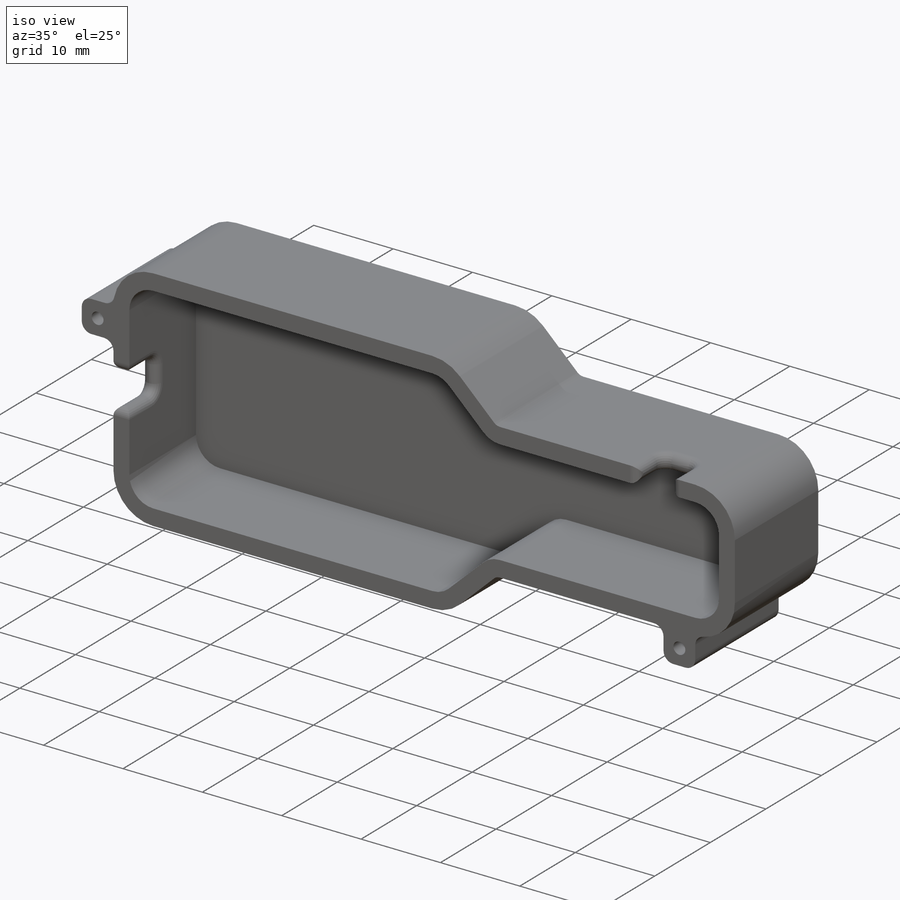
[diagram: iso view]
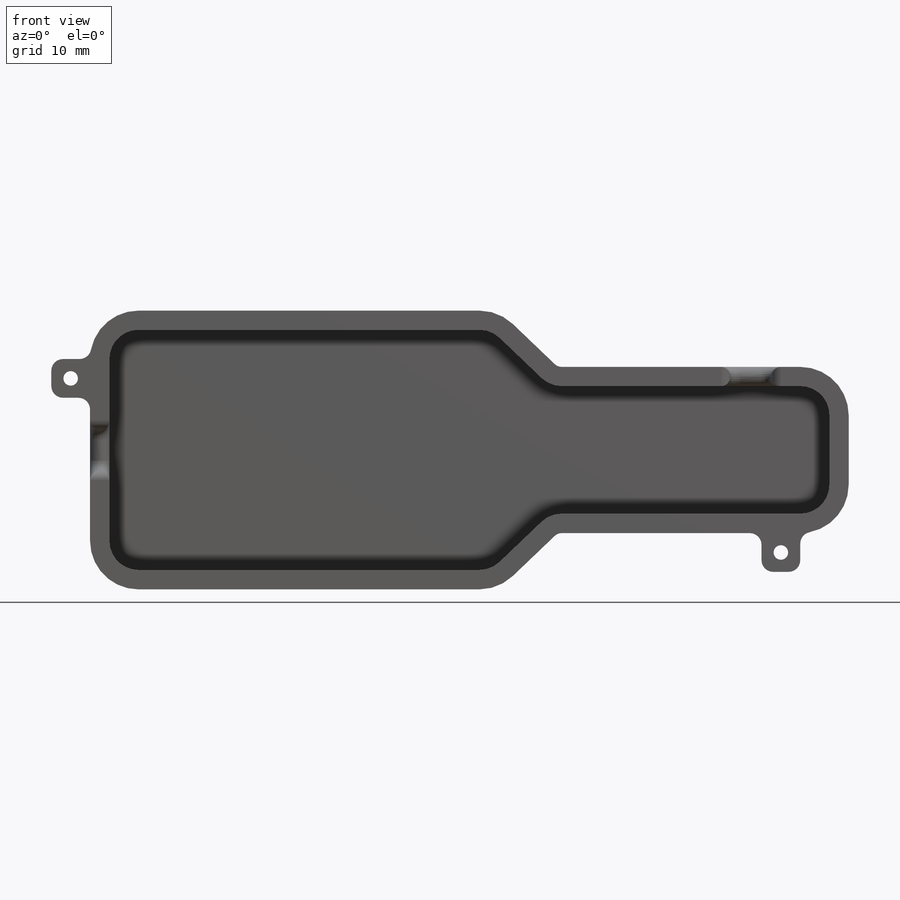
[diagram: front view]
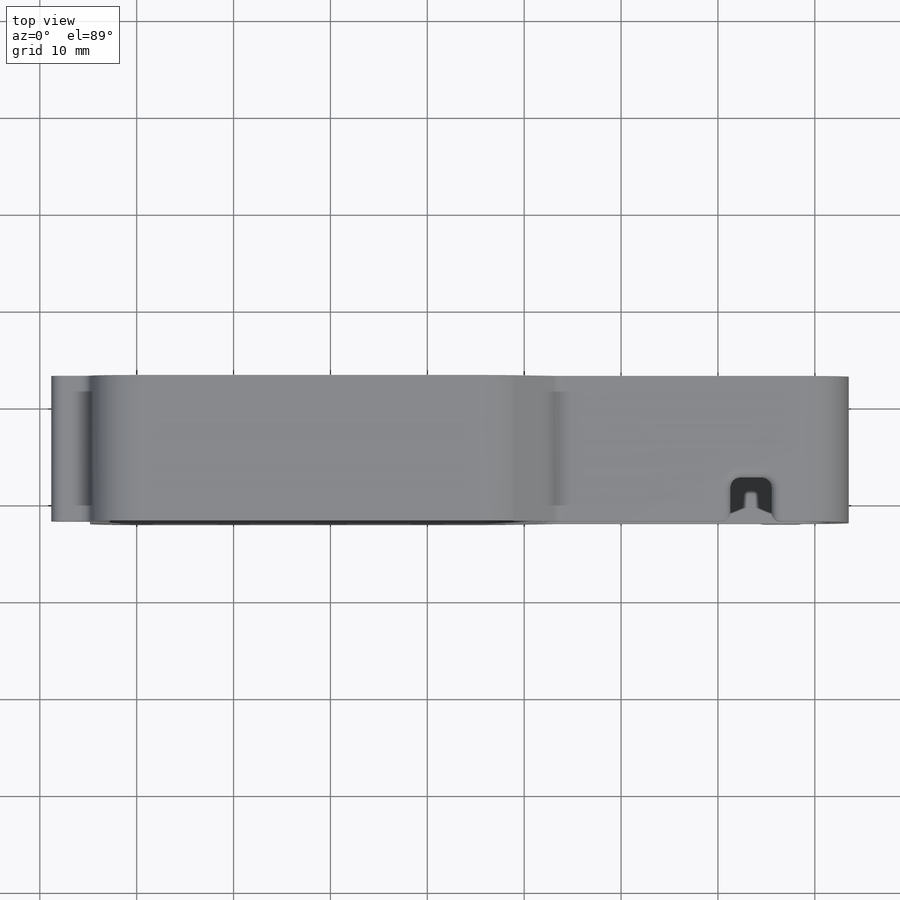
[diagram: top view]
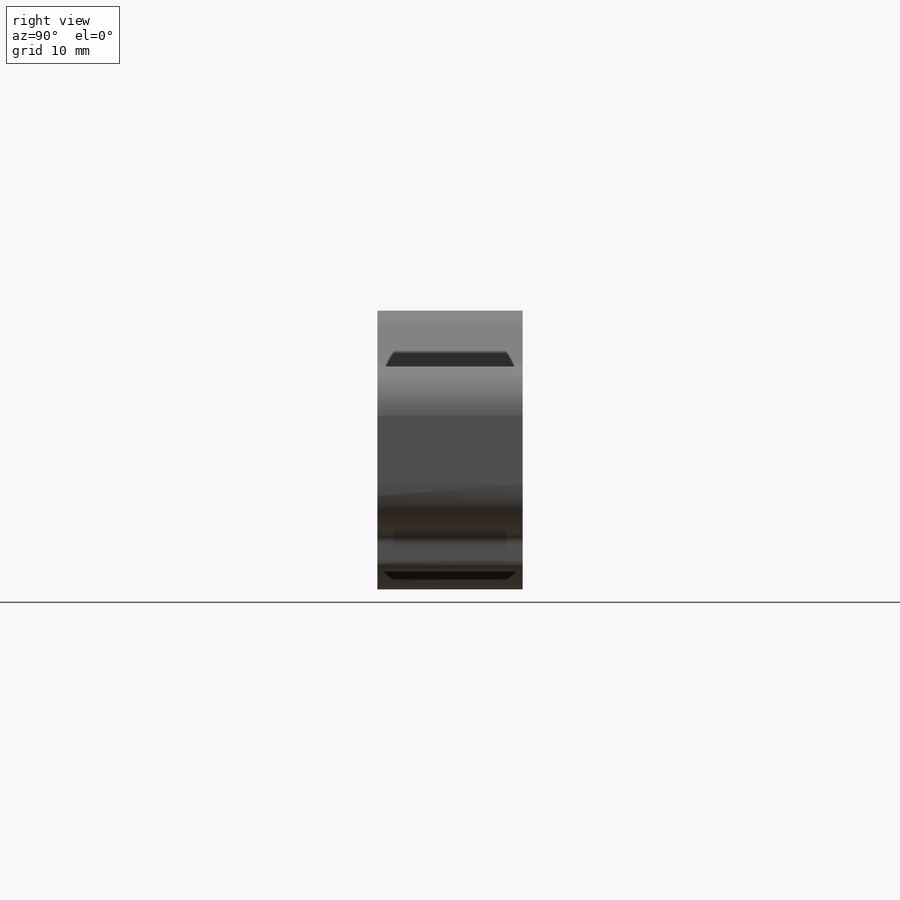
[diagram: right view]
SOLIDWORKS PART (.sldprt)
format: sldprt  version: not decoded by parser v0  size: 499,200 bytes
history: native  units: mm
features: sketch x8, cut_extrude x4, extrude x3, fillet x3, material x1 (+11 scaffold rows collapsed)
feature tree (30):
  scaffold x11  (default folders/planes/origin — collapsed)
  material  "Material <not specified>"
  sketch  "Sketch2"  dims[c1.D1=7.0mm c1.D2=2.0mm c1.D3=2.0mm c1.D10=2.0mm c1.D5=4.4mm c1.D7=7.0mm c1.D4=28.0mm c2.D5=32.0mm c2.D6=18.0mm c2.D7=9.7mm c2.D9=0.0mm c2.D2=10.16mm c2.D3=5.08mm c2.D4=2.54mm c3.D3=2.0mm c3.D2=10.16mm c3.D4=~3.288647mm c3.D5=2.0mm c3.D1=2.0mm c4.D2=2.0mm c4.D4=2.0mm c4.D6=0.0mm c4.D8=1.0mm]
  sketch  "Sketch3"  dims[c1.D5=3.0mm c1.D6=~1.729183mm c1.D7=2.0mm c2.D6=2.0mm c2.D1=1.5mm c2.D2=1.5mm c2.D3=1.5mm c2.D4=1.5mm c2.D7=3.0mm]
  extrude  "Boss-Extrude2"  Depth=12mm
  sketch  "Sketch5"  dims[D1=0.0mm]
  extrude  "Boss-Extrude3"  Depth=3mm
  sketch  "Sketch6"  dims[D1=5.0mm D2=2.1mm]
  cut_extrude  "Cut-Extrude1"  Depth=10mm
  sketch  "Sketch7"  dims[D1=4.2mm D2=4.5mm D3=3.0mm]
  cut_extrude  "Cut-Extrude2"  Depth=10mm
  fillet  "Fillet1"  Radius=1mm
  sketch  "Sketch8"  dims[D1=4.0mm]
  extrude  "Boss-Extrude4"  [1 undecoded]
  fillet  "Fillet2"  Radius=1.2mm
  sketch  "Sketch9"  dims[D5=1.5mm D6=1.5mm D1=2.0mm D2=2.0mm D3=2.0mm D4=2.0mm]
  cut_extrude  "Cut-Extrude3"  [1 undecoded]
  sketch  "Sketch10"  dims[D3=7.0mm D1=14.39mm D2=12.0mm]
  cut_extrude  "Cut-Extrude4"  Depth=1.5mm
  fillet  "Fillet3"  Radius=0.3mm
decode coverage: 16 of 18 modeling features carry decoded parameters
note: ~ marks probable driven/reference dimensions
note: 2 parameter values undecoded
note: suppression state not decoded; provenance and decode notes live in map.json
